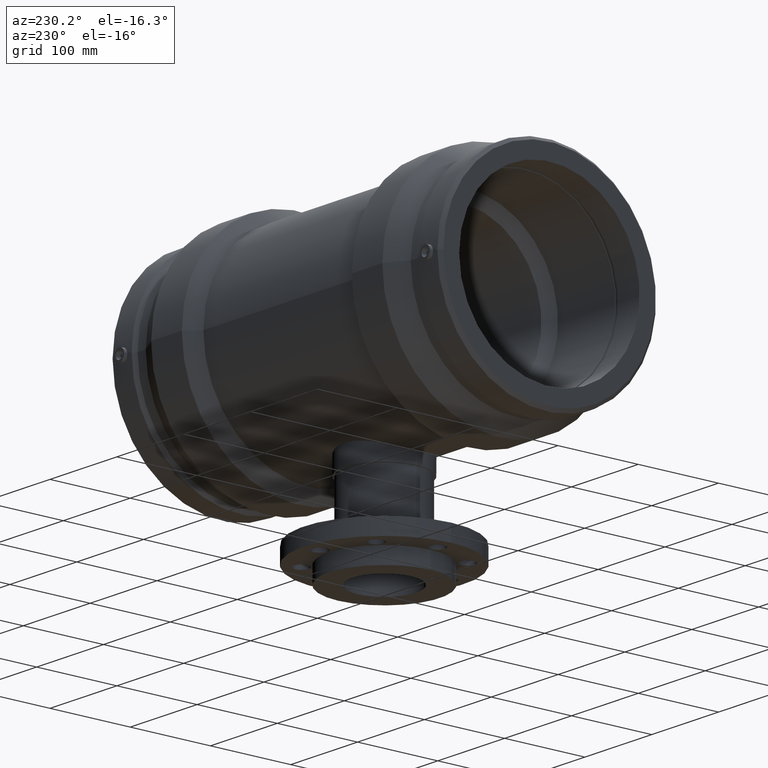
[diagram: clean part render]
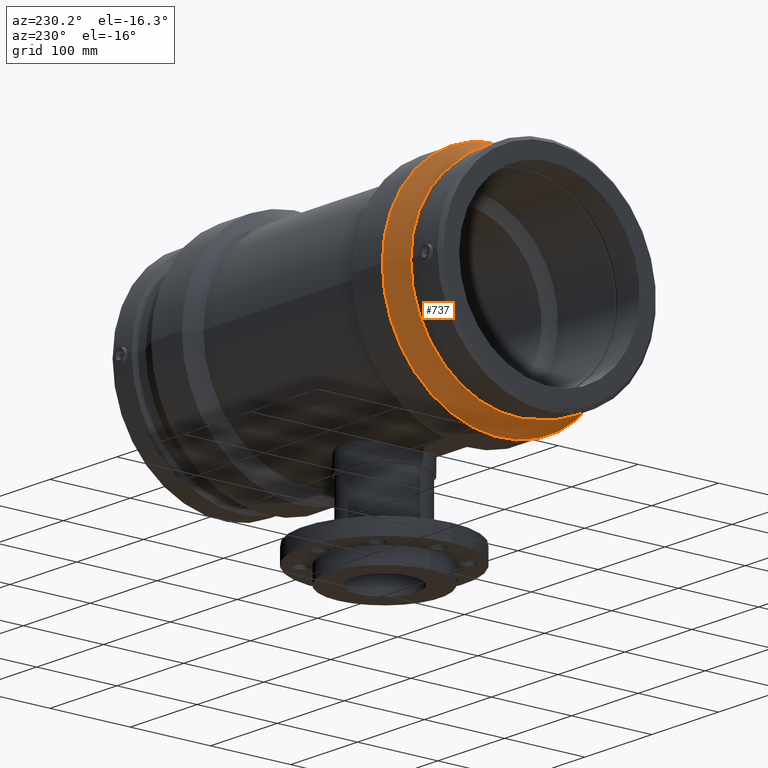
[diagram: same view with one face highlighted and labeled with its STEP entity id]
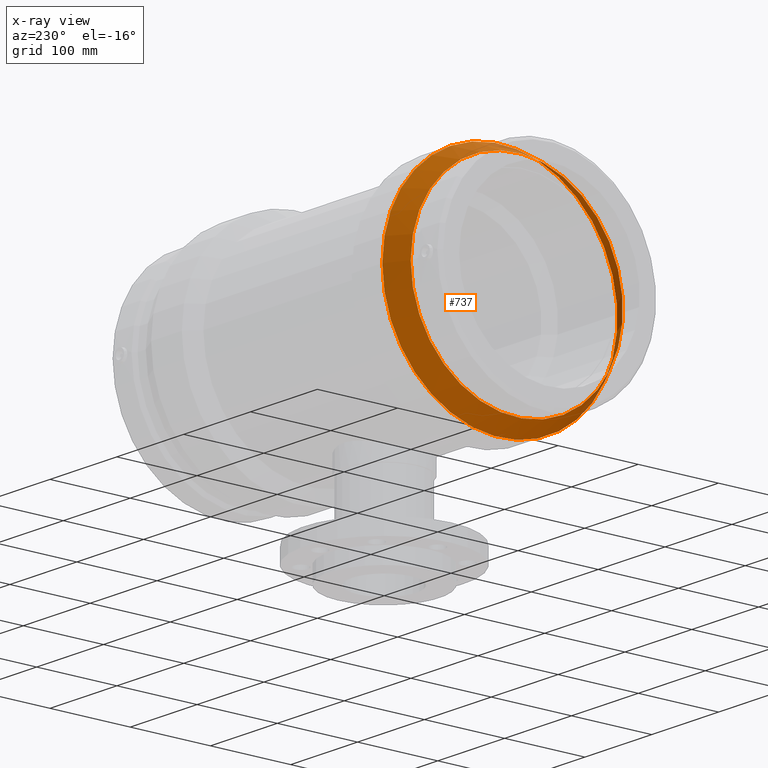
[diagram: x-ray of the same camera — body ghosted, the highlighted face saturated]
A machine part, auxiliary view. The second image highlights one B-rep face of the part: STEP entity #737.
The next image is the same camera in x-ray: the body ghosted, the highlighted face saturated — about 1% of this face is hidden behind the body in this view.
In plain terms, the highlighted conical surface has half-angle 29.549 deg.
Its self-contained STEP definition (entity closure, byte-faithful):
#20=CONICAL_SURFACE('',#842,139.328825,29.5485237194411);
#97=FACE_BOUND('',#367,.T.);
#164=CIRCLE('',#841,132.15765);
#165=CIRCLE('',#843,146.5);
#253=FACE_OUTER_BOUND('',#366,.T.);
#366=EDGE_LOOP('',(#652));
#367=EDGE_LOOP('',(#653));
#467=VERTEX_POINT('',#1662);
#468=VERTEX_POINT('',#1665);
#537=EDGE_CURVE('',#467,#467,#164,.T.);
#538=EDGE_CURVE('',#468,#468,#165,.T.);
#652=ORIENTED_EDGE('',*,*,#537,.T.);
#653=ORIENTED_EDGE('',*,*,#538,.F.);
#737=ADVANCED_FACE('',(#253,#97),#20,.T.);
#841=AXIS2_PLACEMENT_3D('',#1663,#1047,#1048);
#842=AXIS2_PLACEMENT_3D('',#1664,#1049,#1050);
#843=AXIS2_PLACEMENT_3D('',#1666,#1051,#1052);
#1047=DIRECTION('center_axis',(1.,0.,0.));
#1048=DIRECTION('ref_axis',(0.,0.,-1.));
#1049=DIRECTION('center_axis',(1.,0.,0.));
#1050=DIRECTION('ref_axis',(0.,1.,0.));
#1051=DIRECTION('center_axis',(1.,0.,0.));
#1052=DIRECTION('ref_axis',(0.,0.,-1.));
#1662=CARTESIAN_POINT('',(-198.2,132.15765,0.));
#1663=CARTESIAN_POINT('Origin',(-198.2,0.,0.));
#1664=CARTESIAN_POINT('Origin',(-185.55,0.,0.));
#1665=CARTESIAN_POINT('',(-172.9,146.5,0.));
#1666=CARTESIAN_POINT('Origin',(-172.9,0.,0.));